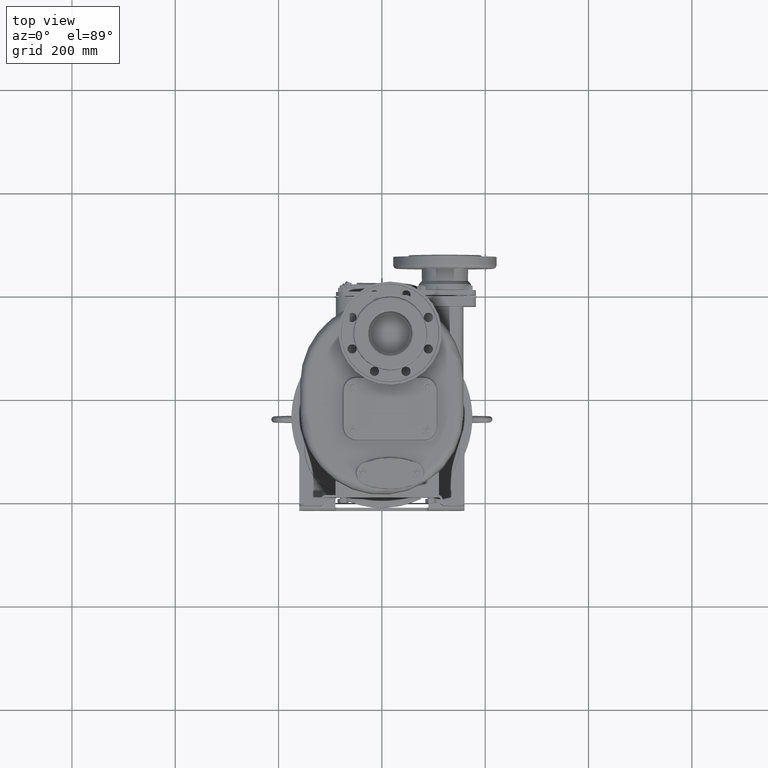
[diagram: clean part render]
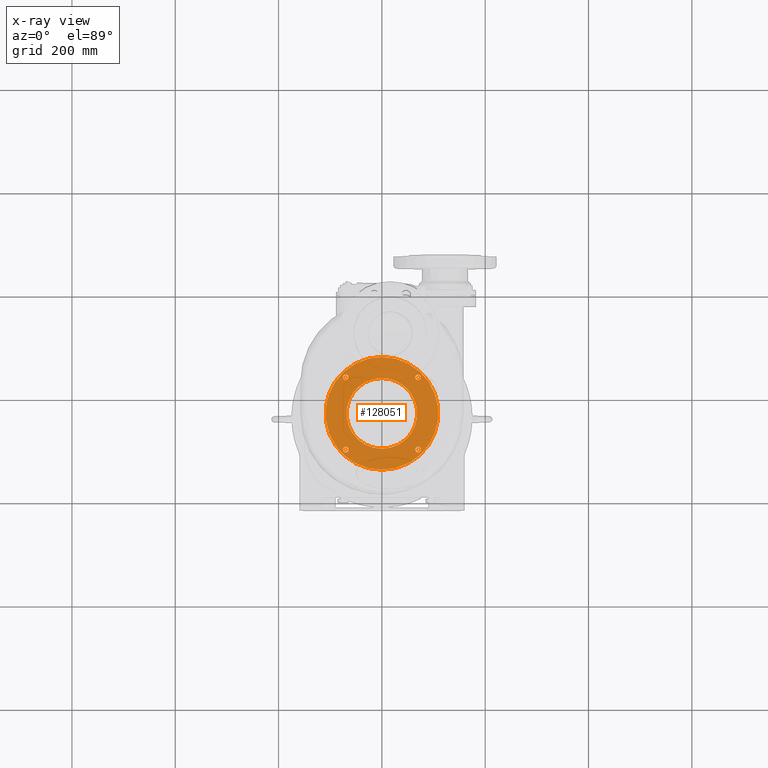
[diagram: x-ray — body ghosted, one internal face saturated and labeled with its STEP entity id]
A machine part, top view, then the same camera in x-ray: the body is ghosted and one INTERNAL B-rep face — a face not visible from any outside direction — is saturated and labeled: STEP entity #128051.
In plain terms, the highlighted planar face has unit normal (0, 0, -1).
Its self-contained STEP definition (entity closure, byte-faithful):
#34870=CARTESIAN_POINT('',(-1.102431854312E-14,1.58E2,-6.4E1));
#34871=DIRECTION('',(0.E0,0.E0,-1.E0));
#34872=DIRECTION('',(0.E0,1.E0,0.E0));
#34873=AXIS2_PLACEMENT_3D('',#34870,#34871,#34872);
#34875=CARTESIAN_POINT('',(-1.102431854312E-14,1.58E2,-6.4E1));
#34876=DIRECTION('',(0.E0,0.E0,-1.E0));
#34877=DIRECTION('',(0.E0,-1.E0,0.E0));
#34878=AXIS2_PLACEMENT_3D('',#34875,#34876,#34877);
#34880=CARTESIAN_POINT('',(7.000357133747E1,8.799642866253E1,-6.4E1));
#34881=DIRECTION('',(0.E0,0.E0,-1.E0));
#34882=DIRECTION('',(0.E0,-1.E0,0.E0));
#34883=AXIS2_PLACEMENT_3D('',#34880,#34881,#34882);
#34885=CARTESIAN_POINT('',(7.000357133747E1,8.799642866253E1,-6.4E1));
#34886=DIRECTION('',(0.E0,0.E0,-1.E0));
#34887=DIRECTION('',(0.E0,1.E0,0.E0));
#34888=AXIS2_PLACEMENT_3D('',#34885,#34886,#34887);
#34890=CARTESIAN_POINT('',(-7.000357133747E1,8.799642866253E1,-6.4E1));
#34891=DIRECTION('',(0.E0,0.E0,-1.E0));
#34892=DIRECTION('',(-1.E0,0.E0,0.E0));
#34893=AXIS2_PLACEMENT_3D('',#34890,#34891,#34892);
#34895=CARTESIAN_POINT('',(-7.000357133747E1,8.799642866253E1,-6.4E1));
#34896=DIRECTION('',(0.E0,0.E0,-1.E0));
#34897=DIRECTION('',(1.E0,0.E0,0.E0));
#34898=AXIS2_PLACEMENT_3D('',#34895,#34896,#34897);
#34900=CARTESIAN_POINT('',(-7.000357133747E1,2.280035713375E2,-6.4E1));
#34901=DIRECTION('',(0.E0,0.E0,-1.E0));
#34902=DIRECTION('',(0.E0,1.E0,0.E0));
#34903=AXIS2_PLACEMENT_3D('',#34900,#34901,#34902);
#34905=CARTESIAN_POINT('',(-7.000357133747E1,2.280035713375E2,-6.4E1));
#34906=DIRECTION('',(0.E0,0.E0,-1.E0));
#34907=DIRECTION('',(0.E0,-1.E0,0.E0));
#34908=AXIS2_PLACEMENT_3D('',#34905,#34906,#34907);
#34910=CARTESIAN_POINT('',(7.000357133747E1,2.280035713375E2,-6.4E1));
#34911=DIRECTION('',(0.E0,0.E0,-1.E0));
#34912=DIRECTION('',(1.E0,0.E0,0.E0));
#34913=AXIS2_PLACEMENT_3D('',#34910,#34911,#34912);
#34915=CARTESIAN_POINT('',(7.000357133747E1,2.280035713375E2,-6.4E1));
#34916=DIRECTION('',(0.E0,0.E0,-1.E0));
#34917=DIRECTION('',(-1.E0,0.E0,0.E0));
#34918=AXIS2_PLACEMENT_3D('',#34915,#34916,#34917);
#34920=CARTESIAN_POINT('',(-1.102431854312E-14,1.58E2,-6.4E1));
#34921=DIRECTION('',(0.E0,0.E0,1.E0));
#34922=DIRECTION('',(0.E0,-1.E0,0.E0));
#34923=AXIS2_PLACEMENT_3D('',#34920,#34921,#34922);
#34925=CARTESIAN_POINT('',(-1.102431854312E-14,1.58E2,-6.4E1));
#34926=DIRECTION('',(0.E0,0.E0,1.E0));
#34927=DIRECTION('',(0.E0,1.E0,0.E0));
#34928=AXIS2_PLACEMENT_3D('',#34925,#34926,#34927);
#78682=CARTESIAN_POINT('',(7.000357133747E1,8.249642866253E1,-6.4E1));
#78684=VERTEX_POINT('',#78682);
#78686=CARTESIAN_POINT('',(7.000357133747E1,9.349642866253E1,-6.4E1));
#78688=VERTEX_POINT('',#78686);
#78690=CARTESIAN_POINT('',(-7.550357133747E1,8.799642866253E1,-6.4E1));
#78692=VERTEX_POINT('',#78690);
#78694=CARTESIAN_POINT('',(-6.450357133747E1,8.799642866253E1,-6.4E1));
#78696=VERTEX_POINT('',#78694);
#78698=CARTESIAN_POINT('',(-7.000357133747E1,2.335035713375E2,-6.4E1));
#78700=VERTEX_POINT('',#78698);
#78702=CARTESIAN_POINT('',(-7.000357133747E1,2.225035713375E2,-6.4E1));
#78704=VERTEX_POINT('',#78702);
#78706=CARTESIAN_POINT('',(7.550357133747E1,2.280035713375E2,-6.4E1));
#78708=VERTEX_POINT('',#78706);
#78710=CARTESIAN_POINT('',(6.450357133747E1,2.280035713375E2,-6.4E1));
#78712=VERTEX_POINT('',#78710);
#78897=CARTESIAN_POINT('',(0.E0,2.672E2,-6.4E1));
#78898=CARTESIAN_POINT('',(0.E0,4.88E1,-6.4E1));
#78899=VERTEX_POINT('',#78897);
#78900=VERTEX_POINT('',#78898);
#78976=CARTESIAN_POINT('',(-2.220346960613E-14,8.958130781332E1,-6.4E1));
#78977=CARTESIAN_POINT('',(0.E0,2.264186921867E2,-6.4E1));
#78978=VERTEX_POINT('',#78976);
#78979=VERTEX_POINT('',#78977);
#128011=CARTESIAN_POINT('',(-1.102431854312E-14,1.58E2,-6.4E1));
#128012=DIRECTION('',(0.E0,0.E0,-1.E0));
#128013=DIRECTION('',(0.E0,1.E0,0.E0));
#128014=AXIS2_PLACEMENT_3D('',#128011,#128012,#128013);
#128015=PLANE('',#128014);
#128017=ORIENTED_EDGE('',*,*,#128016,.T.);
#128018=ORIENTED_EDGE('',*,*,#128001,.T.);
#128019=EDGE_LOOP('',(#128017,#128018));
#128020=FACE_OUTER_BOUND('',#128019,.F.);
#128022=ORIENTED_EDGE('',*,*,#128021,.F.);
#128024=ORIENTED_EDGE('',*,*,#128023,.F.);
#128025=EDGE_LOOP('',(#128022,#128024));
#128026=FACE_BOUND('',#128025,.F.);
#128028=ORIENTED_EDGE('',*,*,#128027,.F.);
#128030=ORIENTED_EDGE('',*,*,#128029,.F.);
#128031=EDGE_LOOP('',(#128028,#128030));
#128032=FACE_BOUND('',#128031,.F.);
#128034=ORIENTED_EDGE('',*,*,#128033,.F.);
#128036=ORIENTED_EDGE('',*,*,#128035,.F.);
#128037=EDGE_LOOP('',(#128034,#128036));
#128038=FACE_BOUND('',#128037,.F.);
#128040=ORIENTED_EDGE('',*,*,#128039,.F.);
#128042=ORIENTED_EDGE('',*,*,#128041,.F.);
#128043=EDGE_LOOP('',(#128040,#128042));
#128044=FACE_BOUND('',#128043,.F.);
#128046=ORIENTED_EDGE('',*,*,#128045,.T.);
#128048=ORIENTED_EDGE('',*,*,#128047,.T.);
#128049=EDGE_LOOP('',(#128046,#128048));
#128050=FACE_BOUND('',#128049,.F.);
#128051=ADVANCED_FACE('',(#128020,#128026,#128032,#128038,#128044,#128050),
#128015,.F.);
#34874=CIRCLE('',#34873,1.092E2);
#34879=CIRCLE('',#34878,1.092E2);
#34884=CIRCLE('',#34883,5.5E0);
#34889=CIRCLE('',#34888,5.5E0);
#34894=CIRCLE('',#34893,5.5E0);
#34899=CIRCLE('',#34898,5.5E0);
#34904=CIRCLE('',#34903,5.5E0);
#34909=CIRCLE('',#34908,5.5E0);
#34914=CIRCLE('',#34913,5.5E0);
#34919=CIRCLE('',#34918,5.5E0);
#34924=CIRCLE('',#34923,6.841869218668E1);
#34929=CIRCLE('',#34928,6.841869218668E1);
#128001=EDGE_CURVE('',#78900,#78899,#34879,.T.);
#128016=EDGE_CURVE('',#78899,#78900,#34874,.T.);
#128021=EDGE_CURVE('',#78684,#78688,#34884,.T.);
#128023=EDGE_CURVE('',#78688,#78684,#34889,.T.);
#128027=EDGE_CURVE('',#78692,#78696,#34894,.T.);
#128029=EDGE_CURVE('',#78696,#78692,#34899,.T.);
#128033=EDGE_CURVE('',#78700,#78704,#34904,.T.);
#128035=EDGE_CURVE('',#78704,#78700,#34909,.T.);
#128039=EDGE_CURVE('',#78708,#78712,#34914,.T.);
#128041=EDGE_CURVE('',#78712,#78708,#34919,.T.);
#128045=EDGE_CURVE('',#78978,#78979,#34924,.T.);
#128047=EDGE_CURVE('',#78979,#78978,#34929,.T.);